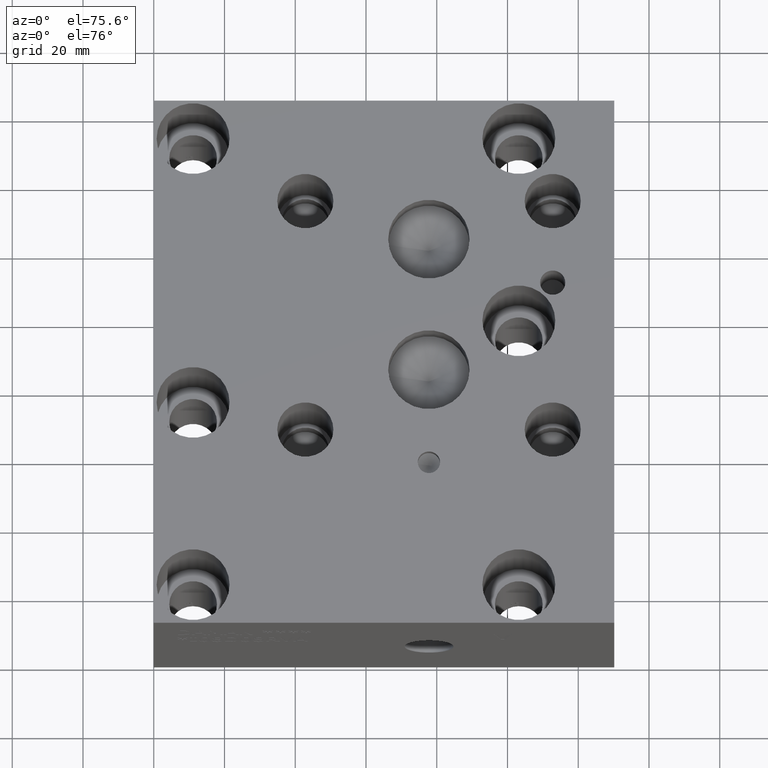
[diagram: clean part render]
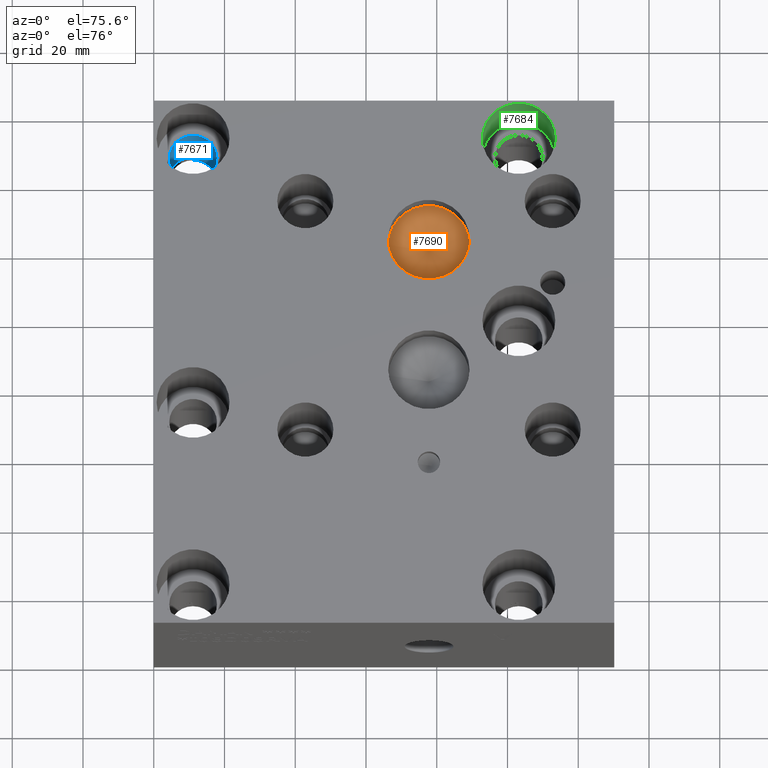
[diagram: same view with three faces highlighted in distinct colors, each labeled with its STEP entity id]
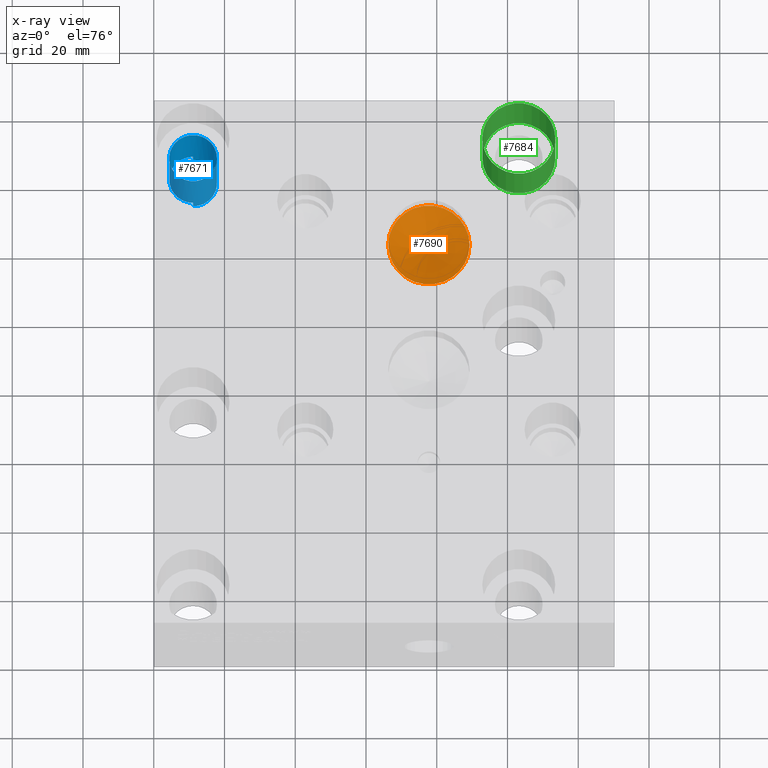
[diagram: x-ray of the same camera — body ghosted, the three highlighted faces saturated]
A machine part, auxiliary view with three faces highlighted in distinct colors.
The next image is the same camera in x-ray (body ghosted, the three faces saturated) — at least one of them is partly hidden behind the body in this view.
Their STEP definitions:

[orange] entity #7690 — the highlighted conical surface has half-angle 60 deg.
#77=CONICAL_SURFACE('',#8104,5.7531,1.0471975511966);
#157=CIRCLE('',#8105,11.5062);
#903=FACE_OUTER_BOUND('',#1371,.T.);
#1371=EDGE_LOOP('',(#6649,#6650,#6651));
#2156=LINE('',#13032,#2919);
#2919=VECTOR('',#9641,5.7531);
#3609=VERTEX_POINT('',#13029);
#3610=VERTEX_POINT('',#13031);
#4633=EDGE_CURVE('',#3609,#3609,#157,.T.);
#4634=EDGE_CURVE('',#3609,#3610,#2156,.T.);
#6649=ORIENTED_EDGE('',*,*,#4633,.T.);
#6650=ORIENTED_EDGE('',*,*,#4634,.T.);
#6651=ORIENTED_EDGE('',*,*,#4634,.F.);
#7690=ADVANCED_FACE('',(#903),#77,.F.);
#8104=AXIS2_PLACEMENT_3D('',#13028,#9637,#9638);
#8105=AXIS2_PLACEMENT_3D('',#13030,#9639,#9640);
#9637=DIRECTION('center_axis',(0.,0.,1.));
#9638=DIRECTION('ref_axis',(1.,0.,0.));
#9639=DIRECTION('center_axis',(0.,0.,1.));
#9640=DIRECTION('ref_axis',(1.,0.,0.));
#9641=DIRECTION('',(0.866025403784439,1.06057523872491E-16,-0.5));
#13028=CARTESIAN_POINT('Origin',(77.7748,111.9378,40.8353361663252));
#13029=CARTESIAN_POINT('',(66.2686,111.9378,44.15689));
#13030=CARTESIAN_POINT('Origin',(77.7748,111.9378,44.15689));
#13031=CARTESIAN_POINT('',(77.7748,111.9378,37.5137823326503));
#13032=CARTESIAN_POINT('',(72.0217,111.9378,40.8353361663252));

[blue] entity #7671 — the highlighted cylindrical surface (bore or boss wall) has radius 6.7437 mm, axis along (0, 0, 1).
#38=CYLINDRICAL_SURFACE('',#8067,6.7437);
#130=CIRCLE('',#8051,6.7437);
#137=CIRCLE('',#8064,6.7437);
#350=B_SPLINE_CURVE_WITH_KNOTS('',3,(#12784,#12785,#12786,#12787,#12788,
#12789,#12790,#12791,#12792,#12793,#12794,#12795),.UNSPECIFIED.,.F.,.F.,
(4,2,2,2,2,4),(1.01738710729477,1.01865669458289,1.27231010773546,1.52596352088803,
1.77908829324352,2.03221306559901),.UNSPECIFIED.);
#351=B_SPLINE_CURVE_WITH_KNOTS('',3,(#12798,#12799,#12800,#12801,#12802,
#12803,#12804,#12805,#12806,#12807,#12808,#12809),.UNSPECIFIED.,.F.,.F.,
(4,2,2,2,2,4),(2.03221306559901,2.28533783795449,2.53846261030998,2.79211602346255,
3.04576943661512,3.04703902390324),.UNSPECIFIED.);
#884=FACE_OUTER_BOUND('',#1347,.T.);
#1347=EDGE_LOOP('',(#6565,#6566,#6567,#6568,#6569,#6570,#6571,#6572));
#2126=LINE('',#12812,#2889);
#2127=LINE('',#12814,#2890);
#2142=LINE('',#12958,#2905);
#2889=VECTOR('',#9463,10.);
#2890=VECTOR('',#9464,10.);
#2905=VECTOR('',#9551,6.7437);
#3559=VERTEX_POINT('',#12782);
#3560=VERTEX_POINT('',#12783);
#3561=VERTEX_POINT('',#12796);
#3562=VERTEX_POINT('',#12811);
#3563=VERTEX_POINT('',#12813);
#3587=VERTEX_POINT('',#12951);
#4556=EDGE_CURVE('',#3559,#3560,#350,.T.);
#4558=EDGE_CURVE('',#3560,#3561,#351,.T.);
#4559=EDGE_CURVE('',#3561,#3562,#2126,.T.);
#4560=EDGE_CURVE('',#3563,#3559,#2127,.T.);
#4587=EDGE_CURVE('',#3563,#3562,#130,.T.);
#4598=EDGE_CURVE('',#3587,#3587,#137,.T.);
#4601=EDGE_CURVE('',#3587,#3560,#2142,.T.);
#6565=ORIENTED_EDGE('',*,*,#4598,.T.);
#6566=ORIENTED_EDGE('',*,*,#4601,.T.);
#6567=ORIENTED_EDGE('',*,*,#4558,.T.);
#6568=ORIENTED_EDGE('',*,*,#4559,.T.);
#6569=ORIENTED_EDGE('',*,*,#4587,.F.);
#6570=ORIENTED_EDGE('',*,*,#4560,.T.);
#6571=ORIENTED_EDGE('',*,*,#4556,.T.);
#6572=ORIENTED_EDGE('',*,*,#4601,.F.);
#7671=ADVANCED_FACE('',(#884),#38,.F.);
#8051=AXIS2_PLACEMENT_3D('',#12928,#9512,#9513);
#8064=AXIS2_PLACEMENT_3D('',#12952,#9542,#9543);
#8067=AXIS2_PLACEMENT_3D('',#12957,#9549,#9550);
#9463=DIRECTION('',(0.,0.,-1.));
#9464=DIRECTION('',(0.,0.,1.));
#9512=DIRECTION('center_axis',(0.,0.,1.));
#9513=DIRECTION('ref_axis',(1.,0.,0.));
#9542=DIRECTION('center_axis',(0.,0.,1.));
#9543=DIRECTION('ref_axis',(1.,0.,0.));
#9549=DIRECTION('center_axis',(0.,0.,1.));
#9550=DIRECTION('ref_axis',(1.,0.,0.));
#9551=DIRECTION('',(0.,0.,-1.));
#12782=CARTESIAN_POINT('',(11.1125,134.556511958579,3.89348));
#12783=CARTESIAN_POINT('',(4.3815,141.3002,3.90814469683742));
#12784=CARTESIAN_POINT('Ctrl Pts',(11.1125,134.556511958579,3.89348));
#12785=CARTESIAN_POINT('Ctrl Pts',(11.1082652563099,134.556519933629,3.89348920877744));
#12786=CARTESIAN_POINT('Ctrl Pts',(11.104031917603,134.556531894906,3.89349841453228));
#12787=CARTESIAN_POINT('Ctrl Pts',(10.2542966193101,134.559732427206,3.8953462427173));
#12788=CARTESIAN_POINT('Ctrl Pts',(9.35298698818021,134.731859258815,3.89730766045352));
#12789=CARTESIAN_POINT('Ctrl Pts',(7.69597373900449,135.424466317942,3.9009161835619));
#12790=CARTESIAN_POINT('Ctrl Pts',(6.94027012572586,135.944946557252,3.90256321450569));
#12791=CARTESIAN_POINT('Ctrl Pts',(5.74896997040051,137.142610378886,3.90516071591034));
#12792=CARTESIAN_POINT('Ctrl Pts',(5.23326970260564,137.899337378239,3.90628582867393));
#12793=CARTESIAN_POINT('Ctrl Pts',(4.54953471142972,139.556257565704,3.9077778564859));
#12794=CARTESIAN_POINT('Ctrl Pts',(4.3815,140.456450758815,3.90814469683742));
#12795=CARTESIAN_POINT('Ctrl Pts',(4.3815,141.3002,3.90814469683742));
#12796=CARTESIAN_POINT('',(11.1125,148.043888041421,3.89348));
#12798=CARTESIAN_POINT('Ctrl Pts',(4.3815,141.3002,3.90814469683742));
#12799=CARTESIAN_POINT('Ctrl Pts',(4.3815,142.143949241185,3.90814469683742));
#12800=CARTESIAN_POINT('Ctrl Pts',(4.54953471142972,143.044142434296,3.9077778564859));
#12801=CARTESIAN_POINT('Ctrl Pts',(5.23326970260564,144.701062621761,3.90628582867394));
#12802=CARTESIAN_POINT('Ctrl Pts',(5.74896997040051,145.457789621114,3.90516071591034));
#12803=CARTESIAN_POINT('Ctrl Pts',(6.94027012572586,146.655453442748,3.90256321450569));
#12804=CARTESIAN_POINT('Ctrl Pts',(7.69597373900449,147.175933682058,3.9009161835619));
#12805=CARTESIAN_POINT('Ctrl Pts',(9.35298698818021,147.868540741185,3.89730766045352));
#12806=CARTESIAN_POINT('Ctrl Pts',(10.2542966193101,148.040667572794,3.8953462427173));
#12807=CARTESIAN_POINT('Ctrl Pts',(11.104031917603,148.043868105094,3.89349841453228));
#12808=CARTESIAN_POINT('Ctrl Pts',(11.1082652563099,148.043880066371,3.89348920877744));
#12809=CARTESIAN_POINT('Ctrl Pts',(11.1125,148.043888041421,3.89348));
#12811=CARTESIAN_POINT('',(11.1125,148.043888041421,0.));
#12812=CARTESIAN_POINT('',(11.1125,148.043888041421,1.94674));
#12813=CARTESIAN_POINT('',(11.1125,134.556511958579,0.));
#12814=CARTESIAN_POINT('',(11.1125,134.556511958579,1.94674));
#12928=CARTESIAN_POINT('Origin',(11.1252,141.3002,0.));
#12951=CARTESIAN_POINT('',(4.3815,141.3002,28.448));
#12952=CARTESIAN_POINT('Origin',(11.1252,141.3002,28.448));
#12957=CARTESIAN_POINT('Origin',(11.1252,141.3002,-155.965399970595));
#12958=CARTESIAN_POINT('',(4.3815,141.3002,-155.965399970595));

[green] entity #7684 — the highlighted cylindrical surface (bore or boss wall) has radius 10.3124 mm, axis along (0, 0, 1).
#46=CYLINDRICAL_SURFACE('',#8093,10.3124);
#150=CIRCLE('',#8091,10.3124);
#152=CIRCLE('',#8094,10.3124);
#897=FACE_OUTER_BOUND('',#1365,.T.);
#1365=EDGE_LOOP('',(#6623,#6624,#6625,#6626));
#2150=LINE('',#13007,#2913);
#2913=VECTOR('',#9613,10.3124);
#3600=VERTEX_POINT('',#13000);
#3602=VERTEX_POINT('',#13005);
#4620=EDGE_CURVE('',#3600,#3600,#150,.T.);
#4622=EDGE_CURVE('',#3602,#3602,#152,.T.);
#4623=EDGE_CURVE('',#3602,#3600,#2150,.T.);
#6623=ORIENTED_EDGE('',*,*,#4622,.F.);
#6624=ORIENTED_EDGE('',*,*,#4623,.T.);
#6625=ORIENTED_EDGE('',*,*,#4620,.F.);
#6626=ORIENTED_EDGE('',*,*,#4623,.F.);
#7684=ADVANCED_FACE('',(#897),#46,.F.);
#8091=AXIS2_PLACEMENT_3D('',#13001,#9605,#9606);
#8093=AXIS2_PLACEMENT_3D('',#13004,#9609,#9610);
#8094=AXIS2_PLACEMENT_3D('',#13006,#9611,#9612);
#9605=DIRECTION('center_axis',(0.,0.,1.));
#9606=DIRECTION('ref_axis',(1.,0.,0.));
#9609=DIRECTION('center_axis',(0.,0.,1.));
#9610=DIRECTION('ref_axis',(1.,0.,0.));
#9611=DIRECTION('center_axis',(0.,0.,-1.));
#9612=DIRECTION('ref_axis',(1.,0.,0.));
#9613=DIRECTION('',(0.,0.,-1.));
#13000=CARTESIAN_POINT('',(92.8878,141.3002,28.448));
#13001=CARTESIAN_POINT('Origin',(103.2002,141.3002,28.448));
#13004=CARTESIAN_POINT('Origin',(103.2002,141.3002,39.624));
#13005=CARTESIAN_POINT('',(92.8878,141.3002,50.8));
#13006=CARTESIAN_POINT('Origin',(103.2002,141.3002,50.8));
#13007=CARTESIAN_POINT('',(92.8878,141.3002,39.624));